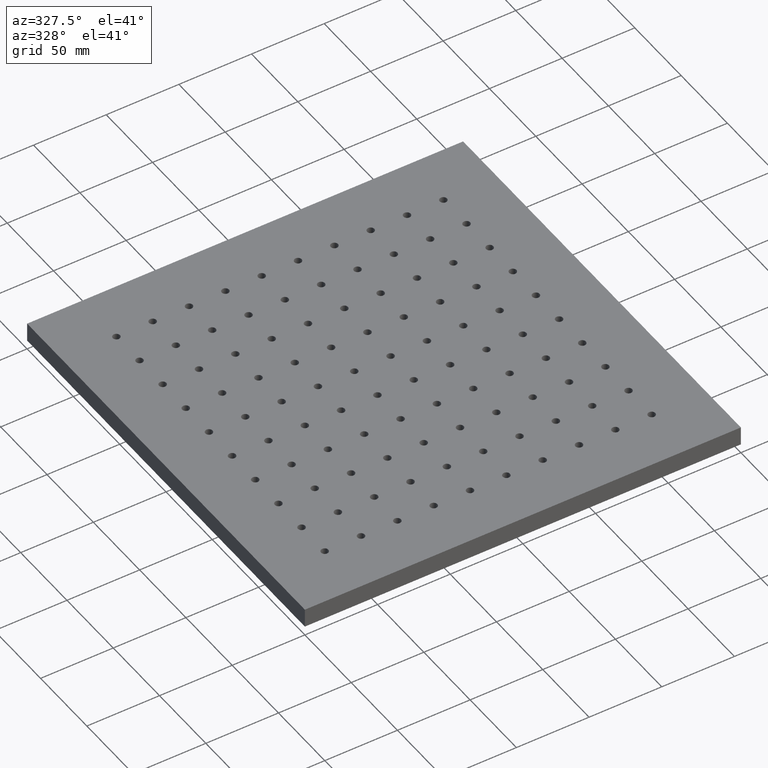
[diagram: clean part render]
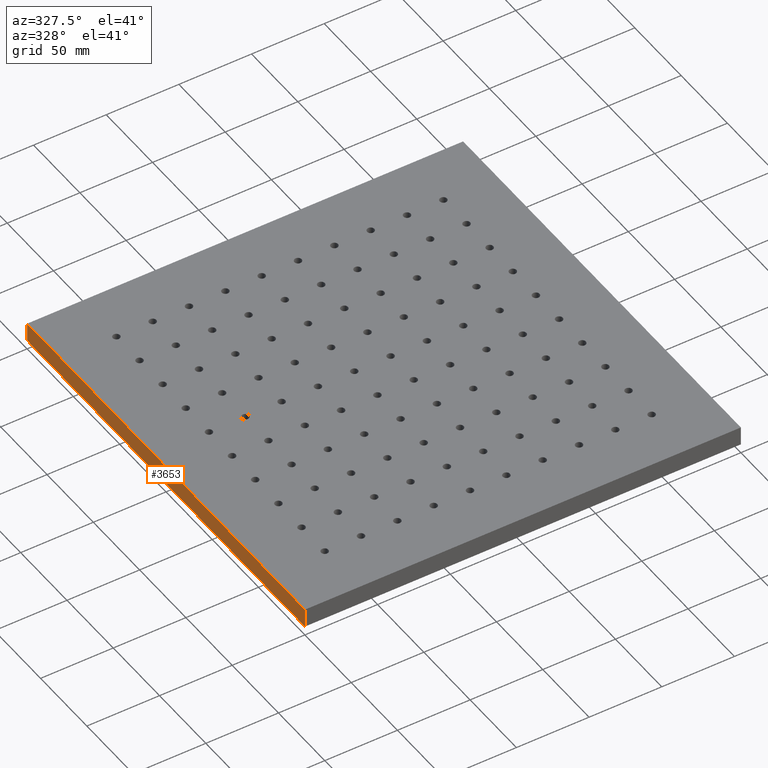
[diagram: same view with one face highlighted and labeled with its STEP entity id]
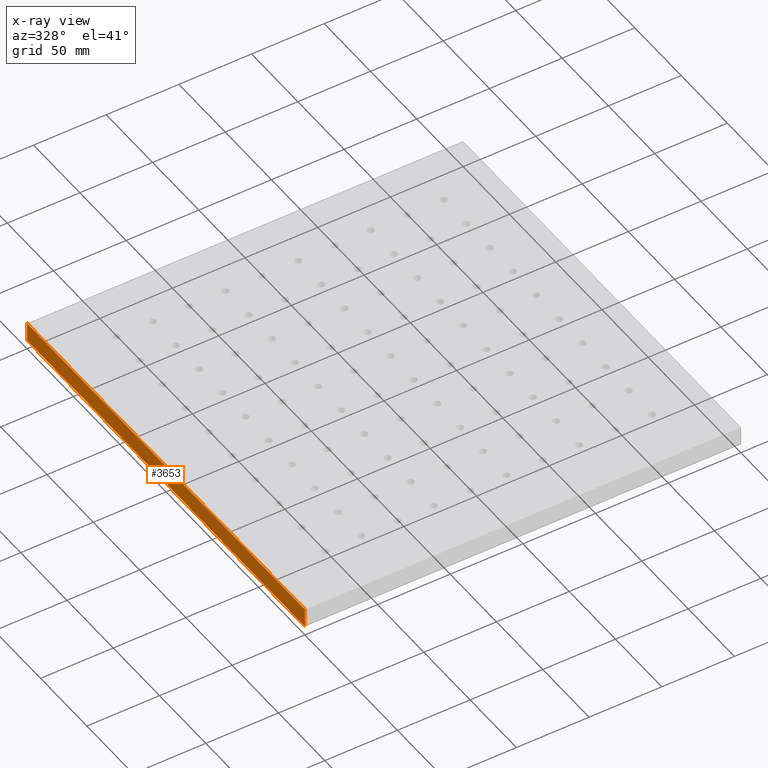
[diagram: x-ray of the same camera — body ghosted, the highlighted face saturated]
A machine part, auxiliary view. The second image highlights one B-rep face of the part: STEP entity #3653.
The next image is the same camera in x-ray: the body ghosted, the highlighted face saturated — about 0% of this face is hidden behind the body in this view.
In plain terms, the highlighted planar face has unit normal (1, 0, -0).
Its self-contained STEP definition (entity closure, byte-faithful):
#217 = DIRECTION ( 'NONE',  ( -0.0000000000000000000, -0.0000000000000000000, -1.000000000000000000 ) ) ;
#356 = VECTOR ( 'NONE', #6034, 1000.000000000000000 ) ;
#651 = LINE ( 'NONE', #4527, #3396 ) ;
#658 = VECTOR ( 'NONE', #1187, 1000.000000000000000 ) ;
#813 = EDGE_CURVE ( 'NONE', #4884, #1126, #840, .T. ) ;
#840 = LINE ( 'NONE', #4114, #658 ) ;
#1126 = VERTEX_POINT ( 'NONE', #7388 ) ;
#1187 = DIRECTION ( 'NONE',  ( 9.251858538542971600E-017, -1.000000000000000000, 0.0000000000000000000 ) ) ;
#1231 = CARTESIAN_POINT ( 'NONE',  ( -150.0000000000000000, 149.9999999999999700, 0.0000000000000000000 ) ) ;
#1320 = ORIENTED_EDGE ( 'NONE', *, *, #813, .T. ) ;
#1604 = FACE_OUTER_BOUND ( 'NONE', #6124, .T. ) ;
#1634 = VECTOR ( 'NONE', #217, 1000.000000000000000 ) ;
#1642 = EDGE_CURVE ( 'NONE', #2351, #4884, #5036, .T. ) ;
#2193 = DIRECTION ( 'NONE',  ( 9.251858538542971600E-017, -1.000000000000000000, 0.0000000000000000000 ) ) ;
#2351 = VERTEX_POINT ( 'NONE', #4472 ) ;
#2990 = CARTESIAN_POINT ( 'NONE',  ( -150.0000000000000000, 149.9999999999999700, 13.00000000000000000 ) ) ;
#3013 = DIRECTION ( 'NONE',  ( -9.251858538542974000E-017, 1.000000000000000000, 0.0000000000000000000 ) ) ;
#3216 = EDGE_CURVE ( 'NONE', #2351, #5879, #651, .T. ) ;
#3396 = VECTOR ( 'NONE', #2193, 1000.000000000000000 ) ;
#3590 = AXIS2_PLACEMENT_3D ( 'NONE', #2990, #6519, #3013 ) ;
#3653 = ADVANCED_FACE ( 'NONE', ( #1604 ), #4756, .F. ) ;
#4114 = CARTESIAN_POINT ( 'NONE',  ( -150.0000000000000000, 149.9999999999999700, 0.0000000000000000000 ) ) ;
#4472 = CARTESIAN_POINT ( 'NONE',  ( -150.0000000000000000, 149.9999999999999700, 13.00000000000000000 ) ) ;
#4527 = CARTESIAN_POINT ( 'NONE',  ( -150.0000000000000000, 149.9999999999999700, 13.00000000000000000 ) ) ;
#4756 = PLANE ( 'NONE',  #3590 ) ;
#4757 = LINE ( 'NONE', #7198, #1634 ) ;
#4851 = CARTESIAN_POINT ( 'NONE',  ( -150.0000000000000000, 149.9999999999999700, 13.00000000000000000 ) ) ;
#4884 = VERTEX_POINT ( 'NONE', #1231 ) ;
#4892 = ORIENTED_EDGE ( 'NONE', *, *, #3216, .F. ) ;
#5036 = LINE ( 'NONE', #4851, #356 ) ;
#5879 = VERTEX_POINT ( 'NONE', #6899 ) ;
#6034 = DIRECTION ( 'NONE',  ( -0.0000000000000000000, -0.0000000000000000000, -1.000000000000000000 ) ) ;
#6124 = EDGE_LOOP ( 'NONE', ( #1320, #7593, #4892, #6489 ) ) ;
#6489 = ORIENTED_EDGE ( 'NONE', *, *, #1642, .T. ) ;
#6519 = DIRECTION ( 'NONE',  ( 1.000000000000000000, 9.251858538542974000E-017, -0.0000000000000000000 ) ) ;
#6637 = EDGE_CURVE ( 'NONE', #5879, #1126, #4757, .T. ) ;
#6899 = CARTESIAN_POINT ( 'NONE',  ( -149.9999999999999700, -150.0000000000000300, 13.00000000000000000 ) ) ;
#7198 = CARTESIAN_POINT ( 'NONE',  ( -149.9999999999999700, -150.0000000000000300, 13.00000000000000000 ) ) ;
#7388 = CARTESIAN_POINT ( 'NONE',  ( -149.9999999999999700, -150.0000000000000300, 0.0000000000000000000 ) ) ;
#7593 = ORIENTED_EDGE ( 'NONE', *, *, #6637, .F. ) ;